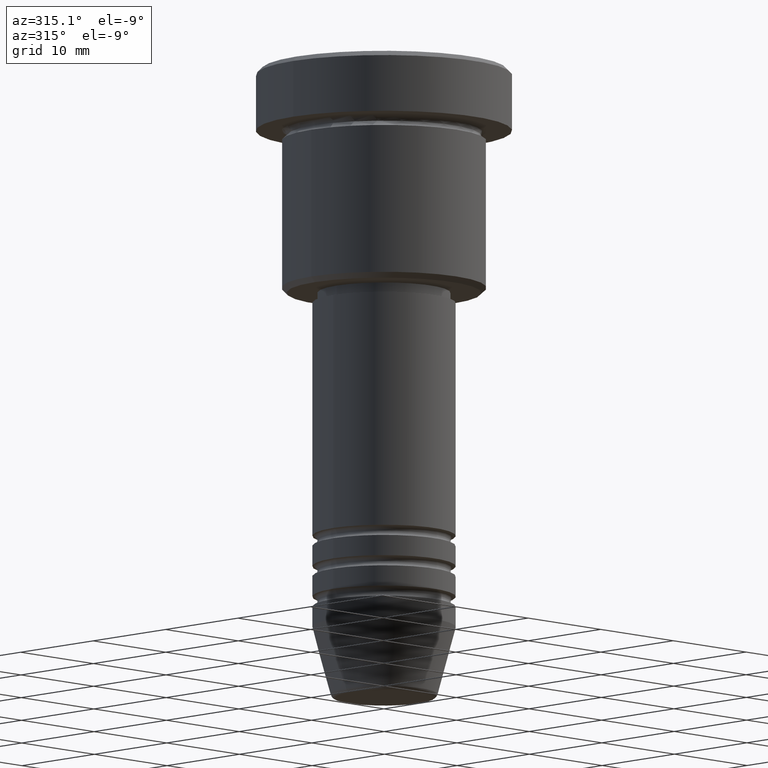
[diagram: clean part render]
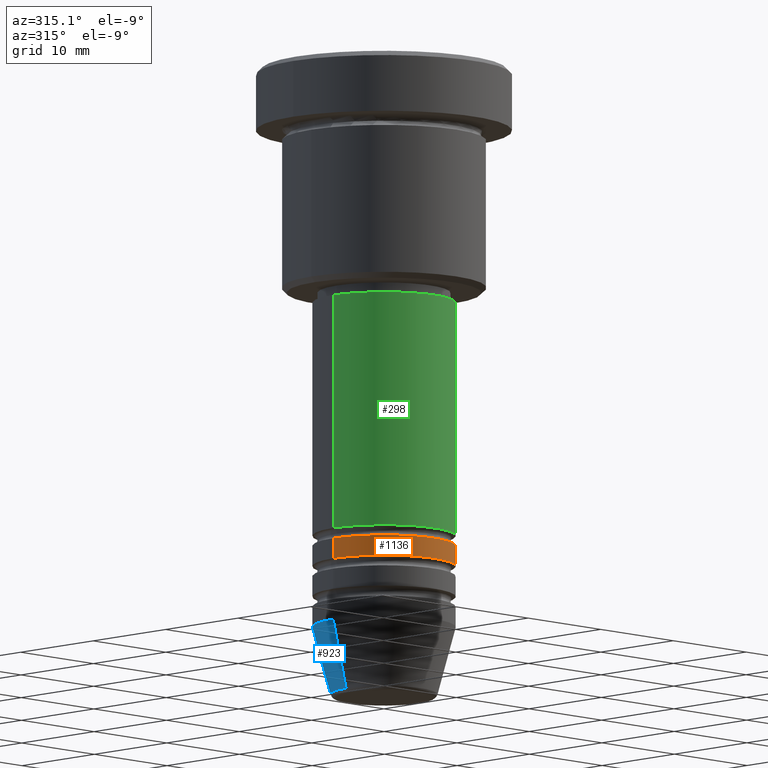
[diagram: same view with three faces highlighted in distinct colors, each labeled with its STEP entity id]
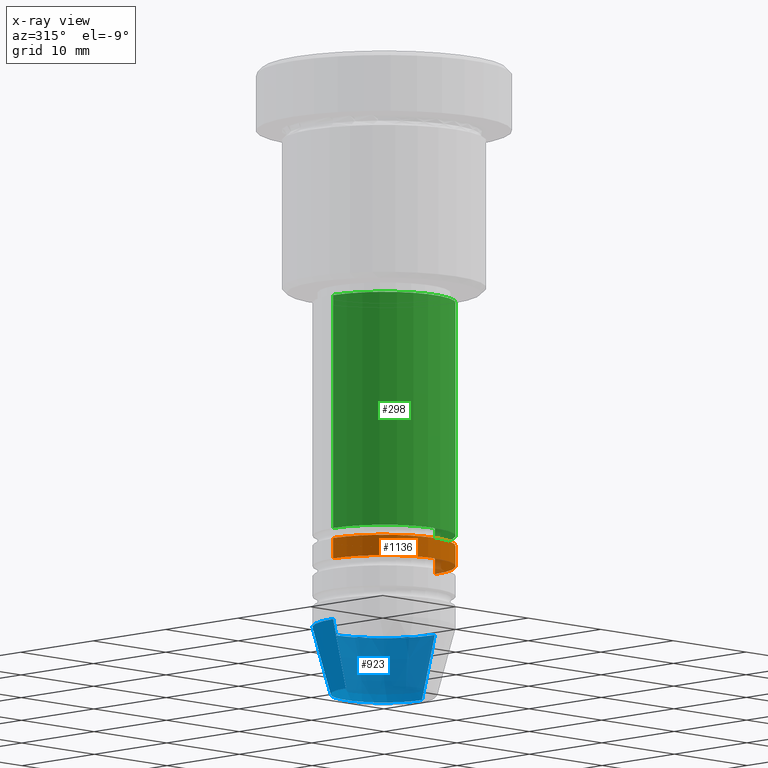
[diagram: x-ray of the same camera — body ghosted, the three highlighted faces saturated]
A machine part, auxiliary view with three faces highlighted in distinct colors.
The next image is the same camera in x-ray (body ghosted, the three faces saturated) — at least one of them is partly hidden behind the body in this view.
Their STEP definitions:

[orange] entity #1136 — the highlighted cylindrical surface (partial cylindrical patch) has radius 7 mm, axis along (-0, -0, 1).
#19 = AXIS2_PLACEMENT_3D ( 'NONE', #944, #496, #503 ) ;
#30 = DIRECTION ( 'NONE',  ( -0.000000000000000000, -0.000000000000000000, 1.000000000000000000 ) ) ;
#106 = ORIENTED_EDGE ( 'NONE', *, *, #281, .F. ) ;
#143 = VERTEX_POINT ( 'NONE', #769 ) ;
#192 = EDGE_CURVE ( 'NONE', #698, #657, #1070, .T. ) ;
#194 = CIRCLE ( 'NONE', #19, 7.000000000000000000 ) ;
#281 = EDGE_CURVE ( 'NONE', #143, #572, #194, .T. ) ;
#300 = LINE ( 'NONE', #492, #1074 ) ;
#308 = AXIS2_PLACEMENT_3D ( 'NONE', #362, #366, #538 ) ;
#362 = CARTESIAN_POINT ( 'NONE',  ( 0.000000000000000000, 0.000000000000000000, -48.99999999999997868 ) ) ;
#366 = DIRECTION ( 'NONE',  ( -0.000000000000000000, -0.000000000000000000, 1.000000000000000000 ) ) ;
#383 = AXIS2_PLACEMENT_3D ( 'NONE', #488, #827, #822 ) ;
#427 = EDGE_LOOP ( 'NONE', ( #628, #606, #1110, #106 ) ) ;
#469 = CARTESIAN_POINT ( 'NONE',  ( -7.000000000000000000, 8.572527594031473190E-16, -48.99999999999997868 ) ) ;
#488 = CARTESIAN_POINT ( 'NONE',  ( 0.000000000000000000, 0.000000000000000000, 0.000000000000000000 ) ) ;
#492 = CARTESIAN_POINT ( 'NONE',  ( 7.000000000000000000, 0.000000000000000000, 0.000000000000000000 ) ) ;
#496 = DIRECTION ( 'NONE',  ( -0.000000000000000000, -0.000000000000000000, 1.000000000000000000 ) ) ;
#503 = DIRECTION ( 'NONE',  ( 1.000000000000000000, 0.000000000000000000, 0.000000000000000000 ) ) ;
#538 = DIRECTION ( 'NONE',  ( 1.000000000000000000, 0.000000000000000000, 0.000000000000000000 ) ) ;
#572 = VERTEX_POINT ( 'NONE', #1130 ) ;
#606 = ORIENTED_EDGE ( 'NONE', *, *, #192, .T. ) ;
#628 = ORIENTED_EDGE ( 'NONE', *, *, #846, .F. ) ;
#630 = EDGE_CURVE ( 'NONE', #657, #572, #300, .T. ) ;
#649 = CYLINDRICAL_SURFACE ( 'NONE', #383, 7.000000000000000000 ) ;
#657 = VERTEX_POINT ( 'NONE', #743 ) ;
#698 = VERTEX_POINT ( 'NONE', #469 ) ;
#743 = CARTESIAN_POINT ( 'NONE',  ( 7.000000000000000000, 0.000000000000000000, -48.99999999999997868 ) ) ;
#765 = CARTESIAN_POINT ( 'NONE',  ( -7.000000000000000000, 8.572527594031473190E-16, 0.000000000000000000 ) ) ;
#769 = CARTESIAN_POINT ( 'NONE',  ( -7.000000000000000000, 8.572527594031473190E-16, -46.99999999999998579 ) ) ;
#785 = DIRECTION ( 'NONE',  ( -0.000000000000000000, -0.000000000000000000, 1.000000000000000000 ) ) ;
#822 = DIRECTION ( 'NONE',  ( 1.000000000000000000, 0.000000000000000000, 0.000000000000000000 ) ) ;
#827 = DIRECTION ( 'NONE',  ( -0.000000000000000000, -0.000000000000000000, 1.000000000000000000 ) ) ;
#846 = EDGE_CURVE ( 'NONE', #698, #143, #1058, .T. ) ;
#897 = VECTOR ( 'NONE', #785, 1000.000000000000000 ) ;
#944 = CARTESIAN_POINT ( 'NONE',  ( 0.000000000000000000, 0.000000000000000000, -46.99999999999998579 ) ) ;
#1002 = FACE_OUTER_BOUND ( 'NONE', #427, .T. ) ;
#1058 = LINE ( 'NONE', #765, #897 ) ;
#1070 = CIRCLE ( 'NONE', #308, 7.000000000000000000 ) ;
#1074 = VECTOR ( 'NONE', #30, 1000.000000000000000 ) ;
#1110 = ORIENTED_EDGE ( 'NONE', *, *, #630, .T. ) ;
#1130 = CARTESIAN_POINT ( 'NONE',  ( 7.000000000000000000, 0.000000000000000000, -46.99999999999998579 ) ) ;
#1136 = ADVANCED_FACE ( 'NONE', ( #1002 ), #649, .T. ) ;

[blue] entity #923 — the highlighted conical surface has half-angle 15 deg.
#12 = VERTEX_POINT ( 'NONE', #992 ) ;
#44 = EDGE_CURVE ( 'NONE', #232, #425, #983, .T. ) ;
#62 = VERTEX_POINT ( 'NONE', #523 ) ;
#84 = EDGE_CURVE ( 'NONE', #425, #62, #741, .T. ) ;
#90 = DIRECTION ( 'NONE',  ( -0.2588190451025213501, 3.169619151431772337E-17, 0.9659258262890680902 ) ) ;
#93 = CARTESIAN_POINT ( 'NONE',  ( 5.223655072137191269, 0.000000000000000000, -61.62940952255126348 ) ) ;
#137 = FACE_OUTER_BOUND ( 'NONE', #836, .T. ) ;
#138 = ORIENTED_EDGE ( 'NONE', *, *, #1067, .T. ) ;
#145 = DIRECTION ( 'NONE',  ( -0.000000000000000000, -0.000000000000000000, 1.000000000000000000 ) ) ;
#204 = ORIENTED_EDGE ( 'NONE', *, *, #84, .F. ) ;
#210 = AXIS2_PLACEMENT_3D ( 'NONE', #1170, #636, #347 ) ;
#232 = VERTEX_POINT ( 'NONE', #93 ) ;
#258 = VECTOR ( 'NONE', #90, 1000.000000000000000 ) ;
#270 = CIRCLE ( 'NONE', #210, 5.223655072137191269 ) ;
#347 = DIRECTION ( 'NONE',  ( 1.000000000000000000, 0.000000000000000000, 0.000000000000000000 ) ) ;
#388 = VECTOR ( 'NONE', #878, 1000.000000000000000 ) ;
#425 = VERTEX_POINT ( 'NONE', #708 ) ;
#466 = AXIS2_PLACEMENT_3D ( 'NONE', #1139, #685, #1063 ) ;
#483 = LINE ( 'NONE', #834, #258 ) ;
#523 = CARTESIAN_POINT ( 'NONE',  ( -7.000000000000000000, 8.572527594031473190E-16, -55.00000000000000000 ) ) ;
#608 = DIRECTION ( 'NONE',  ( 1.000000000000000000, 0.000000000000000000, 0.000000000000000000 ) ) ;
#629 = CONICAL_SURFACE ( 'NONE', #466, 7.000000000000000000, 0.2617993877991500740 ) ;
#636 = DIRECTION ( 'NONE',  ( -0.000000000000000000, -0.000000000000000000, 1.000000000000000000 ) ) ;
#685 = DIRECTION ( 'NONE',  ( -0.000000000000000000, -0.000000000000000000, 1.000000000000000000 ) ) ;
#702 = EDGE_CURVE ( 'NONE', #12, #62, #483, .T. ) ;
#708 = CARTESIAN_POINT ( 'NONE',  ( 7.000000000000000000, 0.000000000000000000, -55.00000000000000000 ) ) ;
#741 = CIRCLE ( 'NONE', #995, 7.000000000000000000 ) ;
#834 = CARTESIAN_POINT ( 'NONE',  ( -7.000000000000000000, 8.572527594031473190E-16, -55.00000000000000000 ) ) ;
#836 = EDGE_LOOP ( 'NONE', ( #138, #922, #204, #1157 ) ) ;
#878 = DIRECTION ( 'NONE',  ( 0.2588190451025213501, 0.000000000000000000, 0.9659258262890680902 ) ) ;
#922 = ORIENTED_EDGE ( 'NONE', *, *, #702, .T. ) ;
#923 = ADVANCED_FACE ( 'NONE', ( #137 ), #629, .T. ) ;
#964 = CARTESIAN_POINT ( 'NONE',  ( 0.000000000000000000, 0.000000000000000000, -55.00000000000000000 ) ) ;
#983 = LINE ( 'NONE', #1061, #388 ) ;
#992 = CARTESIAN_POINT ( 'NONE',  ( -5.223655072137191269, 7.484830028987059188E-16, -61.62940952255126348 ) ) ;
#995 = AXIS2_PLACEMENT_3D ( 'NONE', #964, #145, #608 ) ;
#1061 = CARTESIAN_POINT ( 'NONE',  ( 7.000000000000000000, 0.000000000000000000, -55.00000000000000000 ) ) ;
#1063 = DIRECTION ( 'NONE',  ( 1.000000000000000000, 0.000000000000000000, 0.000000000000000000 ) ) ;
#1067 = EDGE_CURVE ( 'NONE', #232, #12, #270, .T. ) ;
#1139 = CARTESIAN_POINT ( 'NONE',  ( 0.000000000000000000, 0.000000000000000000, -55.00000000000000000 ) ) ;
#1157 = ORIENTED_EDGE ( 'NONE', *, *, #44, .F. ) ;
#1170 = CARTESIAN_POINT ( 'NONE',  ( 0.000000000000000000, 0.000000000000000000, -61.62940952255126348 ) ) ;

[green] entity #298 — the highlighted cylindrical surface (partial cylindrical patch) has radius 7 mm, axis along (-0, -0, 1).
#9 = EDGE_CURVE ( 'NONE', #403, #182, #485, .T. ) ;
#133 = DIRECTION ( 'NONE',  ( 1.000000000000000000, 0.000000000000000000, 0.000000000000000000 ) ) ;
#135 = ORIENTED_EDGE ( 'NONE', *, *, #9, .T. ) ;
#155 = LINE ( 'NONE', #997, #1117 ) ;
#160 = DIRECTION ( 'NONE',  ( -0.000000000000000000, -0.000000000000000000, 1.000000000000000000 ) ) ;
#182 = VERTEX_POINT ( 'NONE', #907 ) ;
#230 = EDGE_CURVE ( 'NONE', #403, #735, #1169, .T. ) ;
#275 = AXIS2_PLACEMENT_3D ( 'NONE', #331, #307, #416 ) ;
#298 = ADVANCED_FACE ( 'NONE', ( #696 ), #1120, .T. ) ;
#307 = DIRECTION ( 'NONE',  ( -0.000000000000000000, -0.000000000000000000, 1.000000000000000000 ) ) ;
#331 = CARTESIAN_POINT ( 'NONE',  ( 0.000000000000000000, 0.000000000000000000, 0.000000000000000000 ) ) ;
#332 = AXIS2_PLACEMENT_3D ( 'NONE', #720, #463, #805 ) ;
#403 = VERTEX_POINT ( 'NONE', #760 ) ;
#412 = VERTEX_POINT ( 'NONE', #982 ) ;
#416 = DIRECTION ( 'NONE',  ( 1.000000000000000000, 0.000000000000000000, 0.000000000000000000 ) ) ;
#463 = DIRECTION ( 'NONE',  ( -0.000000000000000000, -0.000000000000000000, 1.000000000000000000 ) ) ;
#478 = CARTESIAN_POINT ( 'NONE',  ( -7.000000000000000000, 8.572527594031473190E-16, -23.00000000000000000 ) ) ;
#485 = CIRCLE ( 'NONE', #332, 7.000000000000000000 ) ;
#519 = ORIENTED_EDGE ( 'NONE', *, *, #591, .F. ) ;
#566 = EDGE_LOOP ( 'NONE', ( #851, #135, #948, #519 ) ) ;
#591 = EDGE_CURVE ( 'NONE', #735, #412, #635, .T. ) ;
#635 = CIRCLE ( 'NONE', #977, 7.000000000000000000 ) ;
#651 = VECTOR ( 'NONE', #1001, 1000.000000000000000 ) ;
#665 = DIRECTION ( 'NONE',  ( -0.000000000000000000, -0.000000000000000000, 1.000000000000000000 ) ) ;
#696 = FACE_OUTER_BOUND ( 'NONE', #566, .T. ) ;
#720 = CARTESIAN_POINT ( 'NONE',  ( 0.000000000000000000, 0.000000000000000000, -45.99999999999997868 ) ) ;
#735 = VERTEX_POINT ( 'NONE', #478 ) ;
#760 = CARTESIAN_POINT ( 'NONE',  ( -7.000000000000000000, 8.572527594031473190E-16, -45.99999999999997868 ) ) ;
#805 = DIRECTION ( 'NONE',  ( 1.000000000000000000, 0.000000000000000000, 0.000000000000000000 ) ) ;
#851 = ORIENTED_EDGE ( 'NONE', *, *, #230, .F. ) ;
#907 = CARTESIAN_POINT ( 'NONE',  ( 7.000000000000000000, 0.000000000000000000, -45.99999999999997868 ) ) ;
#947 = CARTESIAN_POINT ( 'NONE',  ( 0.000000000000000000, 0.000000000000000000, -23.00000000000000000 ) ) ;
#948 = ORIENTED_EDGE ( 'NONE', *, *, #1046, .T. ) ;
#977 = AXIS2_PLACEMENT_3D ( 'NONE', #947, #665, #133 ) ;
#982 = CARTESIAN_POINT ( 'NONE',  ( 7.000000000000000000, 0.000000000000000000, -23.00000000000000000 ) ) ;
#997 = CARTESIAN_POINT ( 'NONE',  ( 7.000000000000000000, 0.000000000000000000, 0.000000000000000000 ) ) ;
#1001 = DIRECTION ( 'NONE',  ( -0.000000000000000000, -0.000000000000000000, 1.000000000000000000 ) ) ;
#1046 = EDGE_CURVE ( 'NONE', #182, #412, #155, .T. ) ;
#1094 = CARTESIAN_POINT ( 'NONE',  ( -7.000000000000000000, 8.572527594031473190E-16, 0.000000000000000000 ) ) ;
#1117 = VECTOR ( 'NONE', #160, 1000.000000000000000 ) ;
#1120 = CYLINDRICAL_SURFACE ( 'NONE', #275, 7.000000000000000000 ) ;
#1169 = LINE ( 'NONE', #1094, #651 ) ;